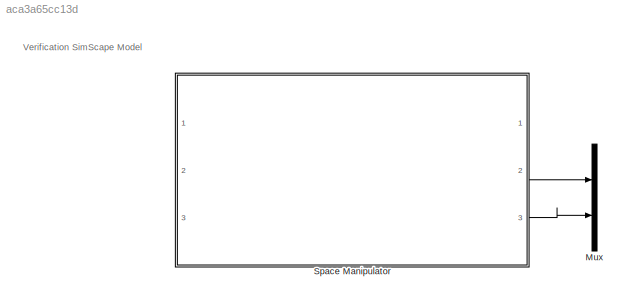
MODEL slx_aca3a65cc13d
KIND model
CONFIG AbsTol = auto
CONFIG EnableMultiTasking = off
CONFIG FixedStep = auto
CONFIG MaxStep = auto
CONFIG MinStep = auto
CONFIG RelTol = 1e-3
CONFIG SampleTimeConstraint = Unconstrained
CONFIG SolverName = VariableStepAuto
CONFIG StartTime = 0.0
CONFIG StopTime = 10.0
BLOCK [Mux] Mux
  DisplayOption = bar
  Inputs = 2
  Ports = [2, 1]
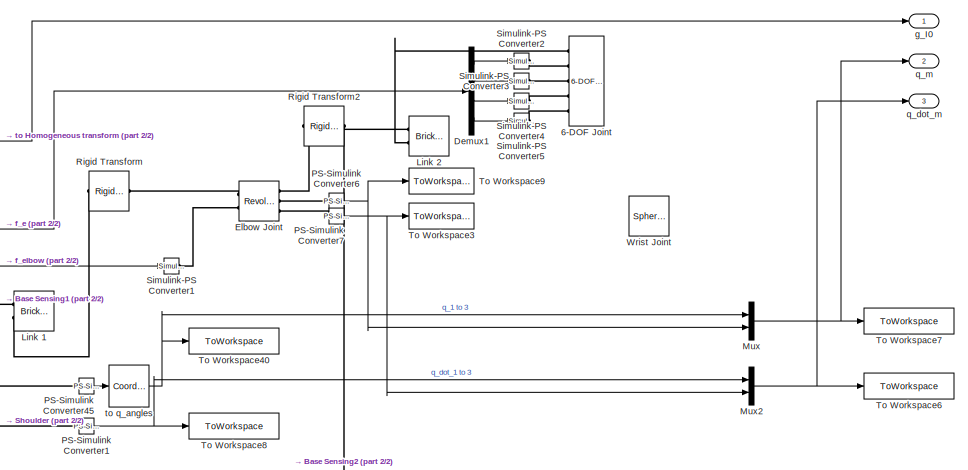
[diagram: Space Manipulator - part 1/2, top right region]
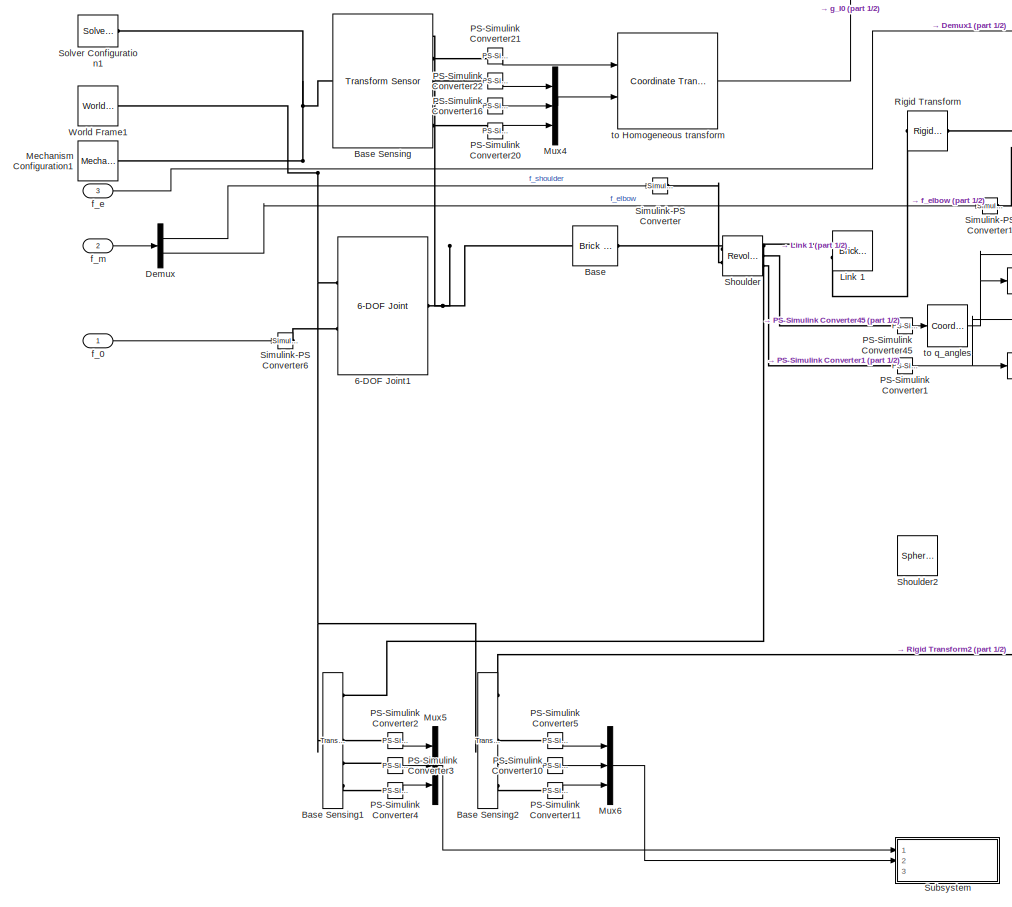
[diagram: Space Manipulator - part 2/2, left side, full height]
BLOCK [SubSystem] Space Manipulator
  Ports = [3, 3]
  RequestExecContextInheritance = off
BLOCK [Reference] Space Manipulator/6-DOF Joint  REF=sm_lib/Joints/6-DOF Joint
  Ports = [0, 0, 0, 0, 0, 5, 1]
  SourceBlock = sm_lib/Joints/6-DOF Joint
  SourceProductBaseCode = MS
  SourceType = 6-DOF Joint
BLOCK [Reference] Space Manipulator/6-DOF Joint1  REF=sm_lib/Joints/6-DOF Joint
  Ports = [0, 0, 0, 0, 0, 2, 1]
  SourceBlock = sm_lib/Joints/6-DOF Joint
  SourceProductBaseCode = MS
  SourceType = 6-DOF Joint
BLOCK [Reference] Space Manipulator/Base  REF=sm_lib/Body Elements/Brick Solid
  Ports = [0, 0, 0, 0, 0, 1, 1]
  SourceBlock = sm_lib/Body Elements/Brick Solid
  SourceProductBaseCode = MS
  SourceType = Brick Solid
BLOCK [Reference] Space Manipulator/Base Sensing  REF=sm_lib/Frames and
Transforms/Transform
Sensor
  Ports = [0, 0, 0, 0, 0, 1, 5]
  SourceBlock = sm_lib/Frames and\nTransforms/Transform\nSensor
  SourceProductBaseCode = MS
  SourceType = Transform\nSensor
BLOCK [Reference] Space Manipulator/Base Sensing1  REF=sm_lib/Frames and
Transforms/Transform
Sensor
  Ports = [0, 0, 0, 0, 0, 1, 5]
  SourceBlock = sm_lib/Frames and\nTransforms/Transform\nSensor
  SourceProductBaseCode = MS
  SourceType = Transform\nSensor
BLOCK [Reference] Space Manipulator/Base Sensing2  REF=sm_lib/Frames and
Transforms/Transform
Sensor
  Ports = [0, 0, 0, 0, 0, 1, 5]
  SourceBlock = sm_lib/Frames and\nTransforms/Transform\nSensor
  SourceProductBaseCode = MS
  SourceType = Transform\nSensor
BLOCK [Demux] Space Manipulator/Demux
  Outputs = 2
  Ports = [1, 2]
BLOCK [Demux] Space Manipulator/Demux1
  Outputs = [1 1 1 3]
  Ports = [1, 4]
BLOCK [Reference] Space Manipulator/Elbow Joint  REF=sm_lib/Joints/Revolute Joint
  Ports = [0, 0, 0, 0, 0, 2, 3]
  SourceBlock = sm_lib/Joints/Revolute Joint
  SourceProductBaseCode = MS
  SourceType = Revolute Joint
BLOCK [Reference] Space Manipulator/Link 1   REF=sm_lib/Body Elements/Brick Solid
  Ports = [0, 0, 0, 0, 0, 2, 1]
  SourceBlock = sm_lib/Body Elements/Brick Solid
  SourceProductBaseCode = MS
  SourceType = Brick Solid
BLOCK [Reference] Space Manipulator/Link 2  REF=sm_lib/Body Elements/Brick Solid
  Ports = [0, 0, 0, 0, 0, 2, 1]
  SourceBlock = sm_lib/Body Elements/Brick Solid
  SourceProductBaseCode = MS
  SourceType = Brick Solid
BLOCK [Reference] Space Manipulator/Mechanism Configuration1  REF=sm_lib/Utilities/Mechanism
Configuration
  Ports = [0, 0, 0, 0, 0, 0, 1]
  SourceBlock = sm_lib/Utilities/Mechanism\nConfiguration
  SourceProductBaseCode = MS
  SourceType = Mechanism\nConfiguration
BLOCK [Mux] Space Manipulator/Mux
  DisplayOption = bar
  Inputs = 2
  Ports = [2, 1]
BLOCK [Mux] Space Manipulator/Mux2
  DisplayOption = bar
  Inputs = 2
  Ports = [2, 1]
BLOCK [Mux] Space Manipulator/Mux4
  DisplayOption = bar
  Inputs = 3
  Ports = [3, 1]
BLOCK [Mux] Space Manipulator/Mux5
  DisplayOption = bar
  Inputs = 3
  Ports = [3, 1]
BLOCK [Mux] Space Manipulator/Mux6
  DisplayOption = bar
  Inputs = 3
  Ports = [3, 1]
BLOCK [Reference] Space Manipulator/PS-Simulink Converter1  REF=nesl_utility/PS-Simulink
Converter
  Ports = [0, 1, 0, 0, 0, 1]
  SourceBlock = nesl_utility/PS-Simulink\nConverter
  SourceProductBaseCode = PW,SS
  SourceType = PS-Simulink\nConverter
BLOCK [Reference] Space Manipulator/PS-Simulink Converter10  REF=nesl_utility/PS-Simulink
Converter
  Ports = [0, 1, 0, 0, 0, 1]
  SourceBlock = nesl_utility/PS-Simulink\nConverter
  SourceProductBaseCode = PW,SS
  SourceType = PS-Simulink\nConverter
BLOCK [Reference] Space Manipulator/PS-Simulink Converter11  REF=nesl_utility/PS-Simulink
Converter
  Ports = [0, 1, 0, 0, 0, 1]
  SourceBlock = nesl_utility/PS-Simulink\nConverter
  SourceProductBaseCode = PW,SS
  SourceType = PS-Simulink\nConverter
BLOCK [Reference] Space Manipulator/PS-Simulink Converter16  REF=nesl_utility/PS-Simulink
Converter
  Ports = [0, 1, 0, 0, 0, 1]
  SourceBlock = nesl_utility/PS-Simulink\nConverter
  SourceProductBaseCode = PW,SS
  SourceType = PS-Simulink\nConverter
BLOCK [Reference] Space Manipulator/PS-Simulink Converter2  REF=nesl_utility/PS-Simulink
Converter
  Ports = [0, 1, 0, 0, 0, 1]
  SourceBlock = nesl_utility/PS-Simulink\nConverter
  SourceProductBaseCode = PW,SS
  SourceType = PS-Simulink\nConverter
BLOCK [Reference] Space Manipulator/PS-Simulink Converter20  REF=nesl_utility/PS-Simulink
Converter
  Ports = [0, 1, 0, 0, 0, 1]
  SourceBlock = nesl_utility/PS-Simulink\nConverter
  SourceProductBaseCode = PW,SS
  SourceType = PS-Simulink\nConverter
BLOCK [Reference] Space Manipulator/PS-Simulink Converter21  REF=nesl_utility/PS-Simulink
Converter
  Ports = [0, 1, 0, 0, 0, 1]
  SourceBlock = nesl_utility/PS-Simulink\nConverter
  SourceProductBaseCode = PW,SS
  SourceType = PS-Simulink\nConverter
BLOCK [Reference] Space Manipulator/PS-Simulink Converter22  REF=nesl_utility/PS-Simulink
Converter
  Ports = [0, 1, 0, 0, 0, 1]
  SourceBlock = nesl_utility/PS-Simulink\nConverter
  SourceProductBaseCode = PW,SS
  SourceType = PS-Simulink\nConverter
BLOCK [Reference] Space Manipulator/PS-Simulink Converter3  REF=nesl_utility/PS-Simulink
Converter
  Ports = [0, 1, 0, 0, 0, 1]
  SourceBlock = nesl_utility/PS-Simulink\nConverter
  SourceProductBaseCode = PW,SS
  SourceType = PS-Simulink\nConverter
BLOCK [Reference] Space Manipulator/PS-Simulink Converter4  REF=nesl_utility/PS-Simulink
Converter
  Ports = [0, 1, 0, 0, 0, 1]
  SourceBlock = nesl_utility/PS-Simulink\nConverter
  SourceProductBaseCode = PW,SS
  SourceType = PS-Simulink\nConverter
BLOCK [Reference] Space Manipulator/PS-Simulink Converter45  REF=nesl_utility/PS-Simulink
Converter
  Ports = [0, 1, 0, 0, 0, 1]
  SourceBlock = nesl_utility/PS-Simulink\nConverter
  SourceProductBaseCode = PW,SS
  SourceType = PS-Simulink\nConverter
BLOCK [Reference] Space Manipulator/PS-Simulink Converter5  REF=nesl_utility/PS-Simulink
Converter
  Ports = [0, 1, 0, 0, 0, 1]
  SourceBlock = nesl_utility/PS-Simulink\nConverter
  SourceProductBaseCode = PW,SS
  SourceType = PS-Simulink\nConverter
BLOCK [Reference] Space Manipulator/PS-Simulink Converter6  REF=nesl_utility/PS-Simulink
Converter
  Ports = [0, 1, 0, 0, 0, 1]
  SourceBlock = nesl_utility/PS-Simulink\nConverter
  SourceProductBaseCode = PW,SS
  SourceType = PS-Simulink\nConverter
BLOCK [Reference] Space Manipulator/PS-Simulink Converter7  REF=nesl_utility/PS-Simulink
Converter
  Ports = [0, 1, 0, 0, 0, 1]
  SourceBlock = nesl_utility/PS-Simulink\nConverter
  SourceProductBaseCode = PW,SS
  SourceType = PS-Simulink\nConverter
BLOCK [Reference] Space Manipulator/Rigid Transform  REF=sm_lib/Frames and
Transforms/Rigid
Transform
  Ports = [0, 0, 0, 0, 0, 1, 1]
  SourceBlock = sm_lib/Frames and\nTransforms/Rigid\nTransform
  SourceProductBaseCode = MS
  SourceType = Rigid\nTransform
BLOCK [Reference] Space Manipulator/Rigid Transform2  REF=sm_lib/Frames and
Transforms/Rigid
Transform
  Ports = [0, 0, 0, 0, 0, 1, 1]
  SourceBlock = sm_lib/Frames and\nTransforms/Rigid\nTransform
  SourceProductBaseCode = MS
  SourceType = Rigid\nTransform
BLOCK [Reference] Space Manipulator/Shoulder  REF=sm_lib/Joints/Revolute Joint
  Ports = [0, 0, 0, 0, 0, 2, 3]
  SourceBlock = sm_lib/Joints/Revolute Joint
  SourceProductBaseCode = MS
  SourceType = Revolute Joint
BLOCK [Reference] Space Manipulator/Shoulder2  REF=sm_lib/Joints/Spherical
Joint
  Ports = [0, 0, 0, 0, 0, 2, 3]
  SourceBlock = sm_lib/Joints/Spherical\nJoint
  SourceProductBaseCode = MS
  SourceType = Spherical\nJoint
BLOCK [Reference] Space Manipulator/Simulink-PS Converter  REF=nesl_utility/Simulink-PS
Converter
  Ports = [1, 0, 0, 0, 0, 0, 1]
  SourceBlock = nesl_utility/Simulink-PS\nConverter
  SourceProductBaseCode = PW,SS
  SourceType = Simulink-PS\nConverter
BLOCK [Reference] Space Manipulator/Simulink-PS Converter1  REF=nesl_utility/Simulink-PS
Converter
  Ports = [1, 0, 0, 0, 0, 0, 1]
  SourceBlock = nesl_utility/Simulink-PS\nConverter
  SourceProductBaseCode = PW,SS
  SourceType = Simulink-PS\nConverter
BLOCK [Reference] Space Manipulator/Simulink-PS Converter2  REF=nesl_utility/Simulink-PS
Converter
  Ports = [1, 0, 0, 0, 0, 0, 1]
  SourceBlock = nesl_utility/Simulink-PS\nConverter
  SourceProductBaseCode = PW,SS
  SourceType = Simulink-PS\nConverter
BLOCK [Reference] Space Manipulator/Simulink-PS Converter3  REF=nesl_utility/Simulink-PS
Converter
  Ports = [1, 0, 0, 0, 0, 0, 1]
  SourceBlock = nesl_utility/Simulink-PS\nConverter
  SourceProductBaseCode = PW,SS
  SourceType = Simulink-PS\nConverter
BLOCK [Reference] Space Manipulator/Simulink-PS Converter4  REF=nesl_utility/Simulink-PS
Converter
  Ports = [1, 0, 0, 0, 0, 0, 1]
  SourceBlock = nesl_utility/Simulink-PS\nConverter
  SourceProductBaseCode = PW,SS
  SourceType = Simulink-PS\nConverter
BLOCK [Reference] Space Manipulator/Simulink-PS Converter5  REF=nesl_utility/Simulink-PS
Converter
  Ports = [1, 0, 0, 0, 0, 0, 1]
  SourceBlock = nesl_utility/Simulink-PS\nConverter
  SourceProductBaseCode = PW,SS
  SourceType = Simulink-PS\nConverter
BLOCK [Reference] Space Manipulator/Simulink-PS Converter6  REF=nesl_utility/Simulink-PS
Converter
  Ports = [1, 0, 0, 0, 0, 0, 1]
  SourceBlock = nesl_utility/Simulink-PS\nConverter
  SourceProductBaseCode = PW,SS
  SourceType = Simulink-PS\nConverter
BLOCK [Reference] Space Manipulator/Solver Configuration1  REF=nesl_utility/Solver
Configuration
  Ports = [0, 0, 0, 0, 0, 0, 1]
  SourceBlock = nesl_utility/Solver\nConfiguration
  SourceProductBaseCode = PW,SS
  SourceType = Solver\nConfiguration
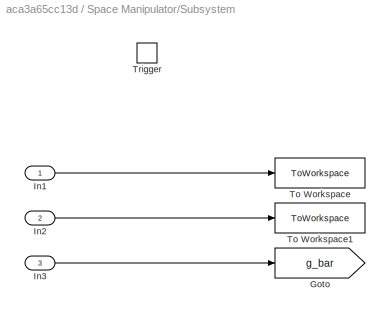
BLOCK [SubSystem] Space Manipulator/Subsystem
  Ports = [3, 0, 0, 1]
  RequestExecContextInheritance = off
BLOCK [Goto] Space Manipulator/Subsystem/Goto
  GotoTag = g_bar
  TagVisibility = global
BLOCK [Inport] Space Manipulator/Subsystem/In1
BLOCK [Inport] Space Manipulator/Subsystem/In2
  Port = 2
BLOCK [Inport] Space Manipulator/Subsystem/In3
  Port = 3
BLOCK [ToWorkspace] Space Manipulator/Subsystem/To Workspace
  FixptAsFi = on
  MaxDataPoints = inf
  Ports = [1]
  SampleTime = -1
  SaveFormat = Timeseries
  VariableName = simout
BLOCK [ToWorkspace] Space Manipulator/Subsystem/To Workspace1
  FixptAsFi = on
  MaxDataPoints = inf
  Ports = [1]
  SampleTime = -1
  SaveFormat = Timeseries
  VariableName = simout1
BLOCK [TriggerPort] Space Manipulator/Subsystem/Trigger
  PortDimensions = 1
  Ports = []
  StatesWhenEnabling = held
  VariantControl = (inherit)
BLOCK [ToWorkspace] Space Manipulator/To Workspace3
  FixptAsFi = on
  MaxDataPoints = inf
  Ports = [1]
  SampleTime = -1
  VariableName = q_dot_elbow
BLOCK [ToWorkspace] Space Manipulator/To Workspace40
  FixptAsFi = on
  MaxDataPoints = inf
  Ports = [1]
  SampleTime = -1
  VariableName = q_shoulder
BLOCK [ToWorkspace] Space Manipulator/To Workspace6
  FixptAsFi = on
  MaxDataPoints = inf
  Ports = [1]
  SampleTime = -1
  VariableName = q_dot_m
BLOCK [ToWorkspace] Space Manipulator/To Workspace7
  FixptAsFi = on
  MaxDataPoints = inf
  Ports = [1]
  SampleTime = -1
  VariableName = q_m
BLOCK [ToWorkspace] Space Manipulator/To Workspace8
  FixptAsFi = on
  MaxDataPoints = inf
  Ports = [1]
  SampleTime = -1
  VariableName = q_dot_shoulder
BLOCK [ToWorkspace] Space Manipulator/To Workspace9
  FixptAsFi = on
  MaxDataPoints = inf
  Ports = [1]
  SampleTime = -1
  VariableName = q_elbow
BLOCK [Reference] Space Manipulator/World Frame1  REF=sm_lib/Frames and
Transforms/World Frame
  Ports = [0, 0, 0, 0, 0, 0, 1]
  SourceBlock = sm_lib/Frames and\nTransforms/World Frame
  SourceProductBaseCode = MS
  SourceType = World Frame
BLOCK [Reference] Space Manipulator/Wrist Joint  REF=sm_lib/Joints/Spherical
Joint
  Ports = [0, 0, 0, 0, 0, 2, 3]
  SourceBlock = sm_lib/Joints/Spherical\nJoint
  SourceProductBaseCode = MS
  SourceType = Spherical\nJoint
BLOCK [Inport] Space Manipulator/f_0
BLOCK [Inport] Space Manipulator/f_e
  Port = 3
BLOCK [Inport] Space Manipulator/f_m
  Port = 2
BLOCK [Outport] Space Manipulator/g_I0
BLOCK [Outport] Space Manipulator/q_dot_m
  Port = 3
BLOCK [Outport] Space Manipulator/q_m
  Port = 2
BLOCK [Reference] Space Manipulator/to Homogeneous transform  REF=robotcorelib/Coordinate Transformation Conversion
  Ports = [2, 1]
  SourceBlock = robotcorelib/Coordinate Transformation Conversion
  SourceProductBaseCode = NV,RO,RR,UV
  SourceType = robotics.slcore.internal.block.CoordinateTransformationConversion
BLOCK [Reference] Space Manipulator/to q_angles  REF=robotcorelib/Coordinate Transformation Conversion
  Ports = [1, 1]
  SourceBlock = robotcorelib/Coordinate Transformation Conversion
  SourceProductBaseCode = NV,RO,RR,UV
  SourceType = robotics.slcore.internal.block.CoordinateTransformationConversion
ANNOTATION (root): Verification SimScape Model
LINE Space Manipulator/Demux1:1 -> Space Manipulator/Simulink-PS Converter2:1
LINE Space Manipulator/Demux1:2 -> Space Manipulator/Simulink-PS Converter3:1
LINE Space Manipulator/Demux1:3 -> Space Manipulator/Simulink-PS Converter4:1
LINE Space Manipulator/Demux1:4 -> Space Manipulator/Simulink-PS Converter5:1
LINE Space Manipulator/Demux:1 -> Space Manipulator/Simulink-PS Converter:1
LINE Space Manipulator/Demux:2 -> Space Manipulator/Simulink-PS Converter1:1
NET Space Manipulator/Mux2:1 -> Space Manipulator/To Workspace6:1, Space Manipulator/q_dot_m:1
LINE Space Manipulator/Mux4:1 -> Space Manipulator/to Homogeneous transform:2
LINE Space Manipulator/Mux5:1 -> Space Manipulator/Subsystem:1
LINE Space Manipulator/Mux6:1 -> Space Manipulator/Subsystem:2
NET Space Manipulator/Mux:1 -> Space Manipulator/To Workspace7:1, Space Manipulator/q_m:1
LINE Space Manipulator/PS-Simulink Converter10:1 -> Space Manipulator/Mux6:2
LINE Space Manipulator/PS-Simulink Converter11:1 -> Space Manipulator/Mux6:3
LINE Space Manipulator/PS-Simulink Converter16:1 -> Space Manipulator/Mux4:2
NET Space Manipulator/PS-Simulink Converter1:1 -> Space Manipulator/Mux2:1, Space Manipulator/To Workspace8:1
LINE Space Manipulator/PS-Simulink Converter20:1 -> Space Manipulator/Mux4:3
LINE Space Manipulator/PS-Simulink Converter21:1 -> Space Manipulator/to Homogeneous transform:1
LINE Space Manipulator/PS-Simulink Converter22:1 -> Space Manipulator/Mux4:1
LINE Space Manipulator/PS-Simulink Converter2:1 -> Space Manipulator/Mux5:1
LINE Space Manipulator/PS-Simulink Converter3:1 -> Space Manipulator/Mux5:2
LINE Space Manipulator/PS-Simulink Converter45:1 -> Space Manipulator/to q_angles:1
LINE Space Manipulator/PS-Simulink Converter4:1 -> Space Manipulator/Mux5:3
LINE Space Manipulator/PS-Simulink Converter5:1 -> Space Manipulator/Mux6:1
NET Space Manipulator/PS-Simulink Converter6:1 -> Space Manipulator/Mux:2, Space Manipulator/To Workspace9:1
NET Space Manipulator/PS-Simulink Converter7:1 -> Space Manipulator/Mux2:2, Space Manipulator/To Workspace3:1
LINE Space Manipulator/Subsystem/In1:1 -> Space Manipulator/Subsystem/To Workspace:1
LINE Space Manipulator/Subsystem/In2:1 -> Space Manipulator/Subsystem/To Workspace1:1
LINE Space Manipulator/Subsystem/In3:1 -> Space Manipulator/Subsystem/Goto:1
LINE Space Manipulator/f_0:1 -> Space Manipulator/Simulink-PS Converter6:1
LINE Space Manipulator/f_e:1 -> Space Manipulator/Demux1:1
LINE Space Manipulator/f_m:1 -> Space Manipulator/Demux:1
LINE Space Manipulator/to Homogeneous transform:1 -> Space Manipulator/g_I0:1
NET Space Manipulator/to q_angles:1 -> Space Manipulator/Mux:1, Space Manipulator/To Workspace40:1
LINE Space Manipulator:2 -> Mux:1
LINE Space Manipulator:3 -> Mux:2
PNET net1: Space Manipulator/6-DOF Joint1:LConn1 -- Space Manipulator/Base Sensing1:LConn1 -- Space Manipulator/Base Sensing2:LConn1 -- Space Manipulator/Base Sensing:LConn1 -- Space Manipulator/Mechanism Configuration1:RConn1 -- Space Manipulator/Solver Configuration1:RConn1 -- Space Manipulator/World Frame1:RConn1
PLINE Space Manipulator/6-DOF Joint1:LConn2 -- Space Manipulator/Simulink-PS Converter6:RConn1
PNET net2: Space Manipulator/6-DOF Joint1:RConn1 -- Space Manipulator/Base Sensing:RConn1 -- Space Manipulator/Base:RConn1
PLINE Space Manipulator/6-DOF Joint:LConn1 -- Space Manipulator/Link 2:LConn2
PLINE Space Manipulator/6-DOF Joint:LConn2 -- Space Manipulator/Simulink-PS Converter2:RConn1
PLINE Space Manipulator/6-DOF Joint:LConn3 -- Space Manipulator/Simulink-PS Converter3:RConn1
PLINE Space Manipulator/6-DOF Joint:LConn4 -- Space Manipulator/Simulink-PS Converter4:RConn1
PLINE Space Manipulator/6-DOF Joint:LConn5 -- Space Manipulator/Simulink-PS Converter5:RConn1
PNET net3: Space Manipulator/Base Sensing1:RConn1 -- Space Manipulator/Link 1 :LConn1 -- Space Manipulator/Shoulder:RConn1
PLINE Space Manipulator/Base Sensing1:RConn3 -- Space Manipulator/PS-Simulink Converter2:LConn1
PLINE Space Manipulator/Base Sensing1:RConn4 -- Space Manipulator/PS-Simulink Converter3:LConn1
PLINE Space Manipulator/Base Sensing1:RConn5 -- Space Manipulator/PS-Simulink Converter4:LConn1
PNET net4: Space Manipulator/Base Sensing2:RConn1 -- Space Manipulator/Link 2:LConn1 -- Space Manipulator/Rigid Transform2:RConn1
PLINE Space Manipulator/Base Sensing2:RConn3 -- Space Manipulator/PS-Simulink Converter5:LConn1
PLINE Space Manipulator/Base Sensing2:RConn4 -- Space Manipulator/PS-Simulink Converter10:LConn1
PLINE Space Manipulator/Base Sensing2:RConn5 -- Space Manipulator/PS-Simulink Converter11:LConn1
PLINE Space Manipulator/Base Sensing:RConn2 -- Space Manipulator/PS-Simulink Converter21:LConn1
PLINE Space Manipulator/Base Sensing:RConn3 -- Space Manipulator/PS-Simulink Converter22:LConn1
PLINE Space Manipulator/Base Sensing:RConn4 -- Space Manipulator/PS-Simulink Converter16:LConn1
PLINE Space Manipulator/Base Sensing:RConn5 -- Space Manipulator/PS-Simulink Converter20:LConn1
PLINE Space Manipulator/Base:LConn1 -- Space Manipulator/Shoulder:LConn1
PLINE Space Manipulator/Elbow Joint:LConn1 -- Space Manipulator/Rigid Transform:RConn1
PLINE Space Manipulator/Elbow Joint:LConn2 -- Space Manipulator/Simulink-PS Converter1:RConn1
PLINE Space Manipulator/Elbow Joint:RConn1 -- Space Manipulator/Rigid Transform2:LConn1
PLINE Space Manipulator/Elbow Joint:RConn2 -- Space Manipulator/PS-Simulink Converter6:LConn1
PLINE Space Manipulator/Elbow Joint:RConn3 -- Space Manipulator/PS-Simulink Converter7:LConn1
PLINE Space Manipulator/Link 1 :LConn2 -- Space Manipulator/Rigid Transform:LConn1
PLINE Space Manipulator/PS-Simulink Converter1:LConn1 -- Space Manipulator/Shoulder:RConn3
PLINE Space Manipulator/PS-Simulink Converter45:LConn1 -- Space Manipulator/Shoulder:RConn2
PLINE Space Manipulator/Shoulder:LConn2 -- Space Manipulator/Simulink-PS Converter:RConn1
note: NET lines group one-source signal fan-out (src -> all destinations, sorted); 1:1 wires keep LINE; PNET lines group multi-terminal physical nets as a canonical sorted terminal list (undirected conserving connections); 2-terminal nets keep the pairwise PLINE form
